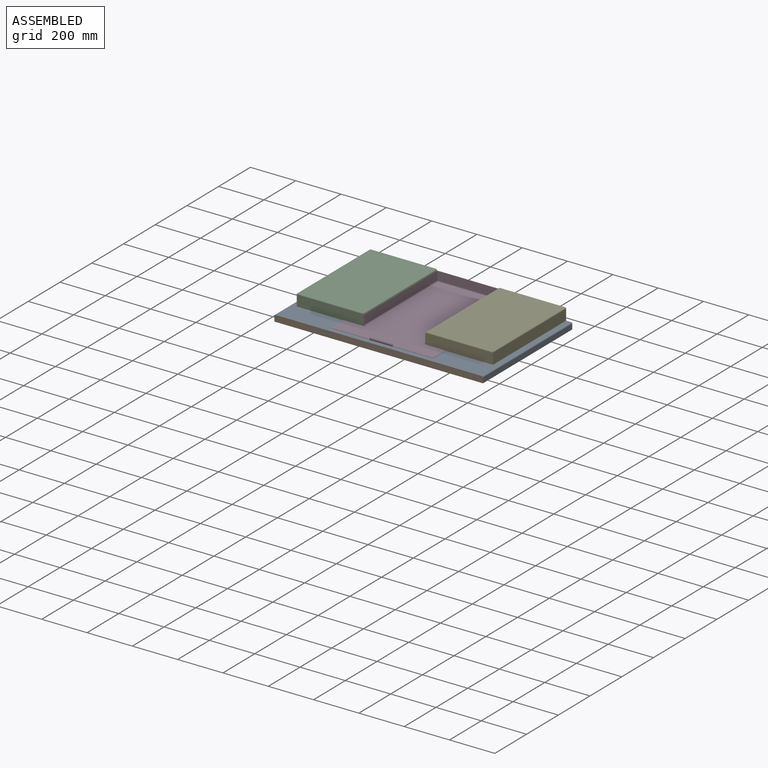
[diagram: assembled view]
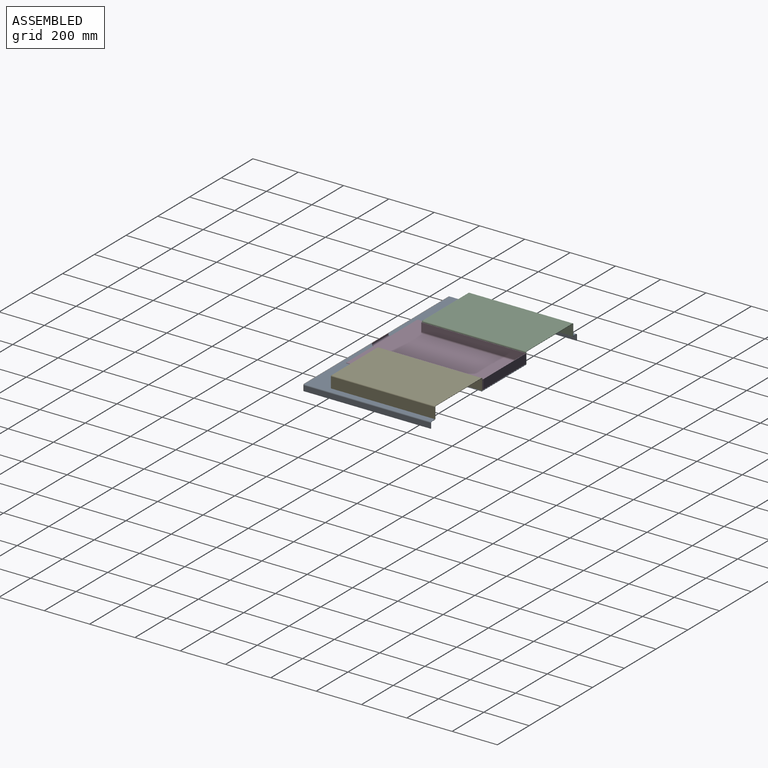
[diagram: assembled view, second angle]
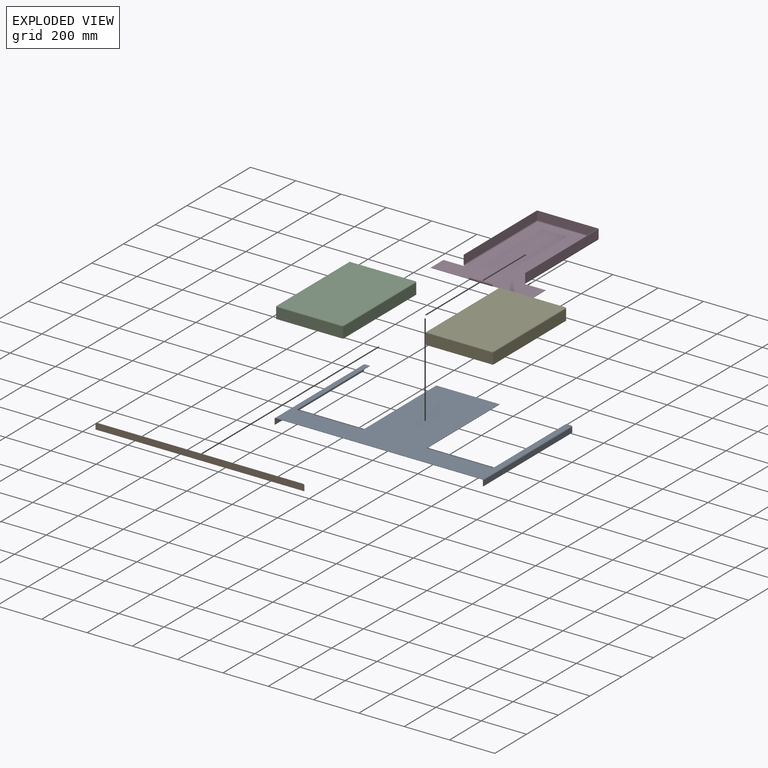
[diagram: exploded view]
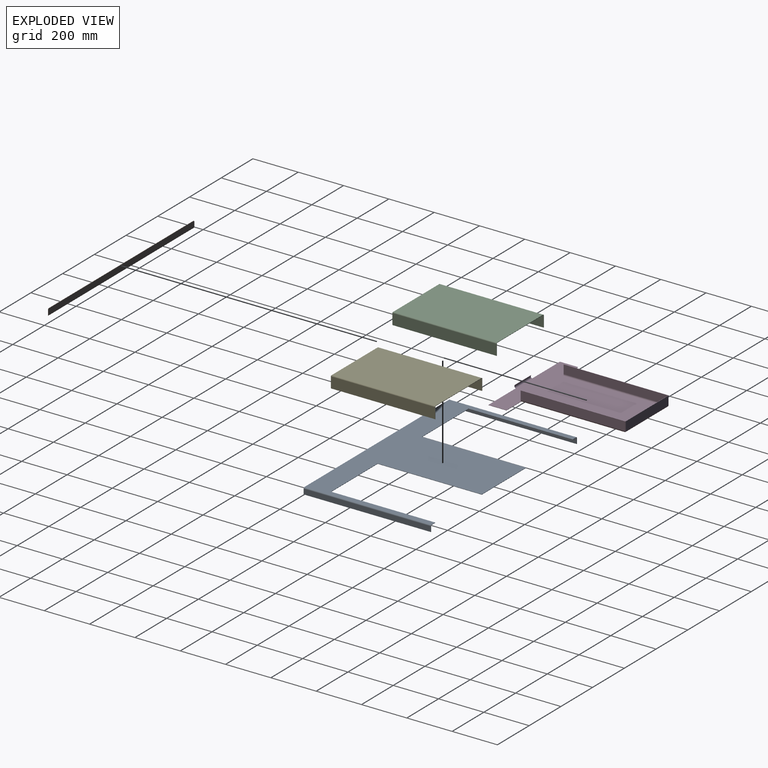
[diagram: exploded view, second angle]
ASSEMBLY  parts=5 mates=4
PART A: 30 faces, bbox 921x561.3x27.9 mm
  f0: plane 22.23x1.59mm, normal (0,1,0), area 35.3mm2, adj f9,f10,f11,f18
  f1: plane 911.5x1.59mm, normal (0,-1,0), area 1447mm2, adj f10,f11,f17,f26
  f2: plane 22.23x1.59mm, normal (0,1,0), area 35.3mm2, adj f3,f10,f11,f27
  f3: plane 459.72x1.59mm, normal (-1,0,0), area 729.8mm2, adj f2,f4,f10,f11
  f4: plane 293.96x1.59mm, normal (0,1,0), area 466.7mm2, adj f3,f5,f10,f11
  f5: plane 459.72x1.59mm, normal (1,0,0), area 729.8mm2, adj f4,f6,f10,f11
  f6: plane 279.13x1.59mm, normal (0,1,0), area 443.1mm2, adj f5,f7,f10,f11
  f7: plane 459.72x1.59mm, normal (-1,0,0), area 729.8mm2, adj f6,f8,f10,f11
  f8: plane 293.96x1.59mm, normal (0,1,0), area 466.7mm2, adj f7,f9,f10,f11
  f9: plane 459.72x1.59mm, normal (1,0,0), area 729.8mm2, adj f0,f8,f10,f11
  f10: plane 911.5x561.29mm, normal (0,0,1), area 241339.3mm2, adj f0,f1,f2,f3,f4,f5,f6,f7
  f11: plane 911.5x561.29mm, normal (0,0,-1), area 241339.3mm2, adj f0,f1,f2,f3,f4,f5,f6,f7
  f12: plane 561.29x1.59mm, normal (0,0,-1), area 891.1mm2, adj f13,f14,f15,f16
  f13: plane 23.16x1.59mm, normal (0,-1,0), area 36.8mm2, adj f12,f15,f16,f17
  f14: plane 23.16x1.59mm, normal (0,1,0), area 36.8mm2, adj f12,f15,f16,f18
  f15: plane 561.29x23.16mm, normal (-1,0,0), area 12996.7mm2, adj f12,f13,f14,f19
  f16: plane 561.29x23.16mm, normal (1,0,0), area 12996.7mm2, adj f12,f13,f14,f20
  f17: plane 4.76x4.76mm, normal (0,-1,0), area 9.9mm2, adj f1,f13,f19,f20
  f18: plane 4.76x4.76mm, normal (0,1,0), area 9.9mm2, adj f0,f14,f19,f20
  f19: cylinder r=4.76mm len=561.29mm, axis (0,-1,0), area 4199mm2, adj f10,f15,f17,f18
  f20: cylinder r=3.17mm len=561.29mm, axis (0,-1,0), area 2799.3mm2, adj f11,f16,f17,f18
  f21: plane 561.29x1.59mm, normal (0,0,-1), area 891.1mm2, adj f22,f23,f24,f25
  f22: plane 23.16x1.59mm, normal (0,1,0), area 36.8mm2, adj f21,f24,f25,f27
  f23: plane 23.16x1.59mm, normal (0,-1,0), area 36.8mm2, adj f21,f24,f25,f26
  f24: plane 561.29x23.16mm, normal (1,0,0), area 12996.7mm2, adj f21,f22,f23,f28
  f25: plane 561.29x23.16mm, normal (-1,0,0), area 12996.7mm2, adj f21,f22,f23,f29
  f26: plane 4.76x4.76mm, normal (0,-1,0), area 9.9mm2, adj f1,f23,f28,f29
  f27: plane 4.76x4.76mm, normal (0,1,0), area 9.9mm2, adj f2,f22,f28,f29
  f28: cylinder r=4.76mm len=561.29mm, axis (0,-1,0), area 4199mm2, adj f10,f24,f26,f27
  f29: cylinder r=3.17mm len=561.29mm, axis (0,-1,0), area 2799.3mm2, adj f11,f25,f26,f27
PART B: 8 faces, bbox 921x1.6x27.9 mm
  f0: plane 921.02x1.59mm, normal (0,0,-1), area 1462.1mm2, adj f1,f3,f4,f5
  f1: plane 22.84x1.59mm, normal (1,0,0), area 36.3mm2, adj f0,f4,f5,f7
  f2: plane 910.86x1.59mm, normal (0,0,1), area 1446mm2, adj f4,f5,f6,f7
  f3: plane 22.84x1.59mm, normal (-1,0,0), area 36.3mm2, adj f0,f4,f5,f6
  f4: plane 921.02x27.92mm, normal (0,-1,0), area 25701.5mm2, adj f0,f1,f2,f3,f6,f7
  f5: plane 921.02x27.92mm, normal (0,1,0), area 25701.5mm2, adj f0,f1,f2,f3,f6,f7
  f6: cylinder r=5.08mm len=5.08mm, axis (0,1,0), area 12.7mm2, adj f2,f3,f4,f5
  f7: cylinder r=5.08mm len=5.08mm, axis (0,-1,0), area 12.7mm2, adj f1,f2,f4,f5
PART C: 32 faces, bbox 297.1x461.3x52.4 mm
  f0: plane 456.54x287.61mm, normal (0,0,1), area 131306.1mm2, adj f1,f3,f4,f12,f21,f30
  f1: plane 287.61x1.59mm, normal (0,1,0), area 456.6mm2, adj f0,f2,f19,f28
  f2: plane 456.54x287.61mm, normal (0,0,-1), area 131306.1mm2, adj f1,f3,f4,f13,f22,f31
  f3: plane 1.59x0.02mm, normal (0.71,-0.71,0), area 0mm2, adj f0,f2,f10,f29
  f4: plane 1.59x0.02mm, normal (-0.71,-0.71,0), area 0mm2, adj f0,f2,f11,f20
  f5: plane 47.63x1.59mm, normal (-1,0,0), area 75.6mm2, adj f6,f8,f9,f11
  f6: plane 293.91x1.59mm, normal (0,0,-1), area 466.6mm2, adj f5,f7,f8,f9
  f7: plane 47.63x1.59mm, normal (1,0,0), area 75.6mm2, adj f6,f8,f9,f10
  f8: plane 293.91x47.63mm, normal (0,-1,0), area 13997.4mm2, adj f5,f6,f7,f12
  f9: plane 293.91x47.63mm, normal (0,1,0), area 13997.4mm2, adj f5,f6,f7,f13
  f10: bspline ~4.76x4.76mm, area 11.3mm2, adj f3,f7,f12,f13
  f11: bspline ~4.76x4.76mm, area 11.4mm2, adj f4,f5,f12,f13
  f12: cylinder r=4.76mm len=293.91mm, axis (1,0,0), area 2181.5mm2, adj f0,f8,f10,f11
  f13: cylinder r=3.17mm len=293.91mm, axis (1,0,0), area 1454.3mm2, adj f2,f9,f10,f11
  f14: plane 47.63x1.59mm, normal (0,1,0), area 75.6mm2, adj f15,f17,f18,f19
  f15: plane 459.69x1.59mm, normal (0,0,-1), area 729.8mm2, adj f14,f16,f17,f18
  f16: plane 47.63x1.59mm, normal (0,-1,0), area 75.6mm2, adj f15,f17,f18,f20
  f17: plane 459.69x47.63mm, normal (-1,0,0), area 21892.8mm2, adj f14,f15,f16,f21
  f18: plane 459.69x47.63mm, normal (1,0,0), area 21892.8mm2, adj f14,f15,f16,f22
  f19: plane 4.76x4.76mm, normal (0,1,0), area 9.9mm2, adj f1,f14,f21,f22
  f20: bspline ~4.76x4.76mm, area 11.3mm2, adj f4,f16,f21,f22
  f21: cylinder r=4.76mm len=459.69mm, axis (0,1,0), area 3430.3mm2, adj f0,f17,f19,f20
  f22: cylinder r=3.17mm len=459.69mm, axis (0,1,0), area 2286.9mm2, adj f2,f18,f19,f20
  f23: plane 47.63x1.59mm, normal (0,-1,0), area 75.6mm2, adj f24,f26,f27,f29
  f24: plane 459.69x1.59mm, normal (0,0,-1), area 729.8mm2, adj f23,f25,f26,f27
  f25: plane 47.63x1.59mm, normal (0,1,0), area 75.6mm2, adj f24,f26,f27,f28
  f26: plane 459.69x47.63mm, normal (1,0,0), area 21892.8mm2, adj f23,f24,f25,f30
  f27: plane 459.69x47.63mm, normal (-1,0,0), area 21892.8mm2, adj f23,f24,f25,f31
  f28: plane 4.76x4.76mm, normal (0,1,0), area 9.9mm2, adj f1,f25,f30,f31
  f29: bspline ~4.76x4.76mm, area 11.4mm2, adj f3,f23,f30,f31
  f30: cylinder r=4.76mm len=459.69mm, axis (0,1,0), area 3430.3mm2, adj f0,f26,f28,f29
  f31: cylinder r=3.17mm len=459.69mm, axis (0,1,0), area 2286.9mm2, adj f2,f27,f28,f29
PART D: 46 faces, bbox 450.9x550.4x46 mm
  f0: plane 38.42x1.27mm, normal (1,0,0), area 48.8mm2, adj f2,f3,f4,f42
  f1: plane 38.42x1.27mm, normal (-1,0,0), area 48.8mm2, adj f2,f3,f4,f43
  f2: plane 270.19x1.27mm, normal (0,0,1), area 343.1mm2, adj f0,f1,f3,f4
  f3: plane 270.19x38.42mm, normal (0,1,0), area 10379.9mm2, adj f0,f1,f2,f44
  f4: plane 270.19x38.42mm, normal (0,-1,0), area 10379.9mm2, adj f0,f1,f2,f45
  f5: plane 96.66x1.27mm, normal (0,1,0), area 119.1mm2, adj f6,f11,f12,f31
  f6: plane 79.89x1.27mm, normal (1,0,0), area 101.5mm2, adj f5,f7,f11,f12
  f7: plane 174.63x1.27mm, normal (0,-1,0), area 221.8mm2, adj f6,f11,f12,f38
  f8: plane 174.63x1.27mm, normal (0,-1,0), area 221.8mm2, adj f9,f11,f12,f39
  f9: plane 79.89x1.27mm, normal (-1,0,0), area 101.5mm2, adj f8,f10,f11,f12
  f10: plane 96.66x1.27mm, normal (0,1,0), area 119.1mm2, adj f9,f11,f12,f22
  f11: plane 535.17x450.85mm, normal (0,0,-1), area 153270.1mm2, adj f5,f6,f7,f8,f9,f10,f13,f14
  f12: plane 535.17x450.85mm, normal (0,0,1), area 153270.1mm2, adj f5,f6,f7,f8,f9,f10,f13,f14
  f13: plane 1.27x0.02mm, normal (0.71,0.71,0), area 0mm2, adj f11,f12,f29,f42
  f14: plane 1.27x0.02mm, normal (-0.71,0.71,0), area 0mm2, adj f11,f12,f20,f43
  f15: plane 38.42x1.27mm, normal (0,1,0), area 48.8mm2, adj f17,f18,f19,f20
  f16: plane 38.42x1.27mm, normal (0,-1,0), area 48.8mm2, adj f17,f18,f19,f21
  f17: plane 461.6x1.27mm, normal (0,0,1), area 586.2mm2, adj f15,f16,f18,f19
  f18: plane 461.6x38.42mm, normal (-1,0,0), area 17733.4mm2, adj f15,f16,f17,f22
  f19: plane 461.6x38.42mm, normal (1,0,0), area 17733.4mm2, adj f15,f16,f17,f23
  f20: bspline ~7.62x7.62mm, area 16.4mm2, adj f14,f15,f22,f23
  f21: plane 7.62x6.35mm, normal (0,-1,0), area 10.3mm2, adj f12,f16,f22,f23
  f22: cylinder r=7.62mm len=461.6mm, axis (0,1,0), area 5497.5mm2, adj f10,f11,f18,f20,f21
  f23: cylinder r=6.35mm len=461.6mm, axis (0,1,0), area 4581.2mm2, adj f12,f19,f20,f21
  f24: plane 38.42x1.27mm, normal (0,1,0), area 48.8mm2, adj f25,f27,f28,f29
  f25: plane 461.6x1.27mm, normal (0,0,1), area 586.2mm2, adj f24,f26,f27,f28
  f26: plane 38.42x1.27mm, normal (0,-1,0), area 48.8mm2, adj f25,f27,f28,f30
  f27: plane 461.6x38.42mm, normal (1,0,0), area 17733.4mm2, adj f24,f25,f26,f31
  f28: plane 461.6x38.42mm, normal (-1,0,0), area 17733.4mm2, adj f24,f25,f26,f32
  f29: bspline ~7.62x7.62mm, area 16.5mm2, adj f13,f24,f31,f32
  f30: plane 7.62x6.35mm, normal (0,-1,0), area 10.3mm2, adj f12,f26,f31,f32
  f31: cylinder r=7.62mm len=461.6mm, axis (0,1,0), area 5497.5mm2, adj f5,f11,f27,f29,f30
  f32: cylinder r=6.35mm len=461.6mm, axis (0,1,0), area 4581.2mm2, adj f12,f28,f29,f30
  f33: plane 101.6x0.9mm, normal (0,0.71,0.71), area 129mm2, adj f34,f35,f36,f37
  f34: plane 1.36x1.36mm, normal (-1,0,0), area 0.8mm2, adj f33,f36,f37,f39
  f35: plane 1.36x1.36mm, normal (1,0,0), area 0.8mm2, adj f33,f36,f37,f38
  f36: plane 101.6x0.46mm, normal (0,-0.71,0.71), area 66.4mm2, adj f33,f34,f35,f40
  f37: plane 101.6x0.46mm, normal (0,0.71,-0.71), area 66.4mm2, adj f33,f34,f35,f41
  f38: plane 13.01x7.62mm, normal (1,0,0), area 20.9mm2, adj f7,f35,f40,f41
  f39: plane 13.01x7.62mm, normal (-1,0,0), area 20.9mm2, adj f8,f34,f40,f41
  f40: cylinder r=7.62mm len=101.6mm, axis (1,0,0), area 1824.1mm2, adj f11,f36,f38,f39
  f41: cylinder r=6.35mm len=101.6mm, axis (1,0,0), area 1520.1mm2, adj f12,f37,f38,f39
  f42: bspline ~7.62x7.62mm, area 16.4mm2, adj f0,f13,f44,f45
  f43: bspline ~7.62x7.62mm, area 16.5mm2, adj f1,f14,f44,f45
  f44: cylinder r=7.62mm len=270.19mm, axis (1,0,0), area 3178.8mm2, adj f3,f11,f42,f43
  f45: cylinder r=6.35mm len=270.19mm, axis (1,0,0), area 2649mm2, adj f4,f12,f42,f43
PART E: 32 faces, bbox 297.1x461.3x52.4 mm
  f0: plane 456.54x287.61mm, normal (0,0,1), area 131306.1mm2, adj f1,f3,f4,f12,f21,f30
  f1: plane 287.61x1.59mm, normal (0,1,0), area 456.6mm2, adj f0,f2,f10,f28
  f2: plane 456.54x287.61mm, normal (0,0,-1), area 131306.1mm2, adj f1,f3,f4,f13,f22,f31
  f3: plane 1.59x0.02mm, normal (0.71,-0.71,0), area 0mm2, adj f0,f2,f20,f29
  f4: plane 1.59x0.02mm, normal (-0.71,-0.71,0), area 0mm2, adj f0,f2,f11,f19
  f5: plane 47.63x1.59mm, normal (0,1,0), area 75.6mm2, adj f6,f8,f9,f10
  f6: plane 459.69x1.59mm, normal (0,0,-1), area 729.8mm2, adj f5,f7,f8,f9
  f7: plane 47.63x1.59mm, normal (0,-1,0), area 75.6mm2, adj f6,f8,f9,f11
  f8: plane 459.69x47.63mm, normal (-1,0,0), area 21892.8mm2, adj f5,f6,f7,f12
  f9: plane 459.69x47.63mm, normal (1,0,0), area 21892.8mm2, adj f5,f6,f7,f13
  f10: plane 4.76x4.76mm, normal (0,1,0), area 9.9mm2, adj f1,f5,f12,f13
  f11: bspline ~4.76x4.76mm, area 11.3mm2, adj f4,f7,f12,f13
  f12: cylinder r=4.76mm len=459.69mm, axis (0,1,0), area 3430.3mm2, adj f0,f8,f10,f11
  f13: cylinder r=3.17mm len=459.69mm, axis (0,1,0), area 2286.9mm2, adj f2,f9,f10,f11
  f14: plane 47.63x1.59mm, normal (-1,0,0), area 75.6mm2, adj f15,f17,f18,f19
  f15: plane 293.91x1.59mm, normal (0,0,-1), area 466.6mm2, adj f14,f16,f17,f18
  f16: plane 47.63x1.59mm, normal (1,0,0), area 75.6mm2, adj f15,f17,f18,f20
  f17: plane 293.91x47.63mm, normal (0,-1,0), area 13997.4mm2, adj f14,f15,f16,f21
  f18: plane 293.91x47.63mm, normal (0,1,0), area 13997.4mm2, adj f14,f15,f16,f22
  f19: bspline ~4.76x4.76mm, area 11.4mm2, adj f4,f14,f21,f22
  f20: bspline ~4.76x4.76mm, area 11.3mm2, adj f3,f16,f21,f22
  f21: cylinder r=4.76mm len=293.91mm, axis (-1,0,0), area 2181.5mm2, adj f0,f17,f19,f20
  f22: cylinder r=3.17mm len=293.91mm, axis (-1,0,0), area 1454.3mm2, adj f2,f18,f19,f20
  f23: plane 47.63x1.59mm, normal (0,-1,0), area 75.6mm2, adj f24,f26,f27,f29
  f24: plane 459.69x1.59mm, normal (0,0,-1), area 729.8mm2, adj f23,f25,f26,f27
  f25: plane 47.63x1.59mm, normal (0,1,0), area 75.6mm2, adj f24,f26,f27,f28
  f26: plane 459.69x47.63mm, normal (1,0,0), area 21892.8mm2, adj f23,f24,f25,f30
  f27: plane 459.69x47.63mm, normal (-1,0,0), area 21892.8mm2, adj f23,f24,f25,f31
  f28: plane 4.76x4.76mm, normal (0,1,0), area 9.9mm2, adj f1,f25,f30,f31
  f29: bspline ~4.76x4.76mm, area 11.4mm2, adj f3,f23,f30,f31
  f30: cylinder r=4.76mm len=459.69mm, axis (0,1,0), area 3430.3mm2, adj f0,f26,f28,f29
  f31: cylinder r=3.17mm len=459.69mm, axis (0,1,0), area 2286.9mm2, adj f2,f27,f28,f29
PLACE A t=(215.46,325.2,-63.08)mm
PLACE B t=(215.46,325.22,-63.08)mm
PLACE C t=(215.44,326.78,-63.08)mm
PLACE D t=(214.64,328.08,-63.08)mm
PLACE E t=(213.88,325.17,-63.08)mm
MATE fastened E.f24 <-> A.f10  axis (0,0,1) through (648.99,119.48,-60.56)mm
MATE fastened B.f5 <-> A.f1  axis (0,1,0) through (215.46,17.9,-60.56)mm
MATE fastened A.f10 <-> C.f6  axis (0,0,1) through (-218.06,119.48,-60.56)mm
MATE fastened D.f15 <-> C.f25  axis (0,1,0) through (78.25,580.78,-14.52)mm
